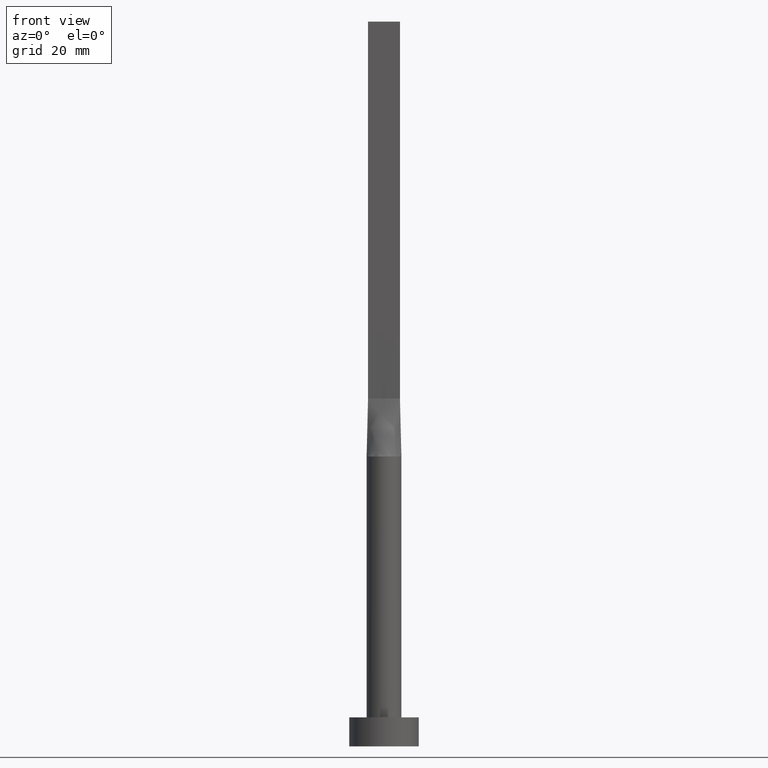
[diagram: clean part render]
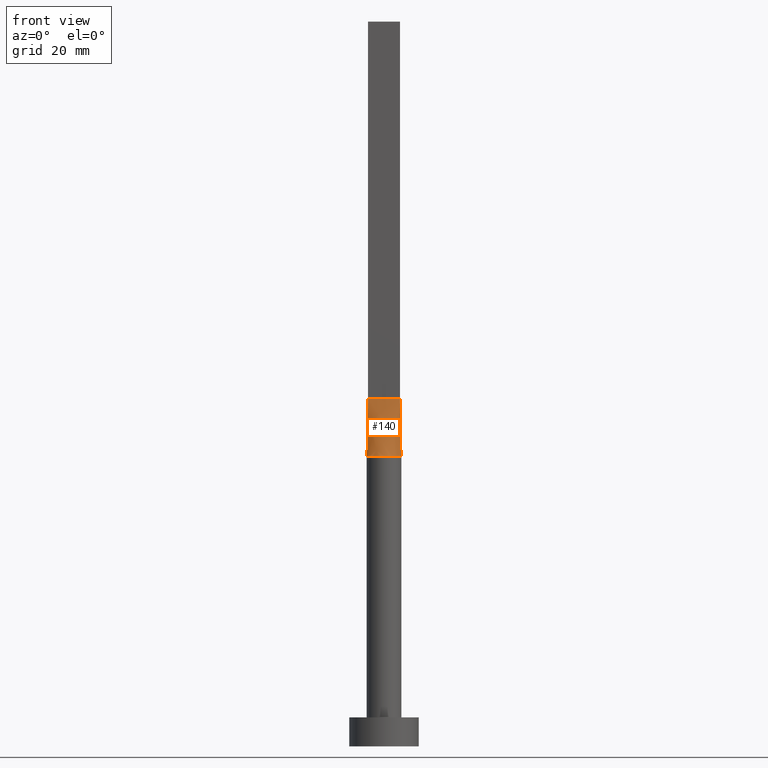
[diagram: same view with one face highlighted and labeled with its STEP entity id]
A machine part, front view. The second image highlights one B-rep face of the part: STEP entity #140.
In plain terms, the highlighted face is a freeform B-spline surface patch.
Its self-contained STEP definition (entity closure, byte-faithful):
#18 = VERTEX_POINT ( 'NONE', #77 ) ;
#29 = VECTOR ( 'NONE', #60, 1000.000000000000000 ) ;
#40 = CARTESIAN_POINT ( 'NONE',  ( -0.4583333333333366455, -0.5999999999999994227, 59.99999999999998579 ) ) ;
#42 = CARTESIAN_POINT ( 'NONE',  ( 1.517787371616671876, -2.616501225271829156, 50.00000000000002842 ) ) ;
#45 = CARTESIAN_POINT ( 'NONE',  ( -2.520833333333333037, -0.5999999999999994227, 59.99999999999999289 ) ) ;
#60 = DIRECTION ( 'NONE',  ( -0.01810162078030962129, -0.003949444533885649103, -0.9998283518749604415 ) ) ;
#64 = CARTESIAN_POINT ( 'NONE',  ( 2.518011668798964209, -1.657305971825550506, 49.99999999999998579 ) ) ;
#69 = CARTESIAN_POINT ( 'NONE',  ( 2.750000000000000000, -0.5999999999999997558, 60.00000000000000000 ) ) ;
#76 = CARTESIAN_POINT ( 'NONE',  ( -2.792624347712116428, -1.135030881087314647, 49.99999999999997868 ) ) ;
#77 = CARTESIAN_POINT ( 'NONE',  ( -2.750000000000000000, -0.5999999999999994227, 60.00000000000000000 ) ) ;
#113 = EDGE_CURVE ( 'NONE', #333, #520, #442, .T. ) ;
#116 = ORIENTED_EDGE ( 'NONE', *, *, #208, .T. ) ;
#130 = CARTESIAN_POINT ( 'NONE',  ( -1.829136458871248427, -2.402980488111649660, 49.99999999999997158 ) ) ;
#140 = ADVANCED_FACE ( 'NONE', ( #249 ), #419, .T. ) ;
#148 = ORIENTED_EDGE ( 'NONE', *, *, #226, .F. ) ;
#153 = CARTESIAN_POINT ( 'NONE',  ( 2.931047284229977734, -0.6395012256501753090, 49.99999999999999289 ) ) ;
#162 = CARTESIAN_POINT ( 'NONE',  ( -2.328745122427009928, -1.922758842442225058, 49.99999999999997868 ) ) ;
#163 = EDGE_CURVE ( 'NONE', #18, #494, #422, .T. ) ;
#166 = CARTESIAN_POINT ( 'NONE',  ( -1.145833333333335480, -0.5999999999999994227, 59.99999999999998579 ) ) ;
#170 = DIRECTION ( 'NONE',  ( 1.000000000000000000, -5.913830031739115543E-17, 0.000000000000000000 ) ) ;
#186 = CARTESIAN_POINT ( 'NONE',  ( 1.145833333333330373, -0.5999999999999996447, 60.00000000000000000 ) ) ;
#195 = CARTESIAN_POINT ( 'NONE',  ( 1.833333333333331261, -0.5999999999999996447, 60.00000000000000000 ) ) ;
#200 = CARTESIAN_POINT ( 'NONE',  ( -0.9166666666666691832, -0.5999999999999994227, 59.99999999999998579 ) ) ;
#204 = VECTOR ( 'NONE', #170, 1000.000000000000000 ) ;
#205 = CARTESIAN_POINT ( 'NONE',  ( -0.2291666666666703212, -0.5999999999999995337, 59.99999999999999289 ) ) ;
#208 = EDGE_CURVE ( 'NONE', #494, #333, #265, .T. ) ;
#210 = VECTOR ( 'NONE', #260, 1000.000000000000000 ) ;
#216 = CARTESIAN_POINT ( 'NONE',  ( -2.750000000000000000, -0.5999999999999994227, 60.00000000000000000 ) ) ;
#223 = DIRECTION ( 'NONE',  ( 1.000000000000000000, 0.000000000000000000, 0.000000000000000000 ) ) ;
#226 = EDGE_CURVE ( 'NONE', #18, #520, #374, .T. ) ;
#249 = FACE_OUTER_BOUND ( 'NONE', #278, .T. ) ;
#256 = CARTESIAN_POINT ( 'NONE',  ( -1.604166666666667851, -0.5999999999999994227, 59.99999999999998579 ) ) ;
#260 = DIRECTION ( 'NONE',  ( -0.01810162078030962129, 0.003949444533885595326, 0.9998283518749604415 ) ) ;
#265 = CIRCLE ( 'NONE', #322, 3.000000000000000444 ) ;
#278 = EDGE_LOOP ( 'NONE', ( #116, #353, #148, #416 ) ) ;
#282 = CARTESIAN_POINT ( 'NONE',  ( 2.750000000000000000, -0.5999999999999997558, 60.00000000000000000 ) ) ;
#305 = CARTESIAN_POINT ( 'NONE',  ( 1.604166666666664298, -0.5999999999999996447, 60.00000000000000000 ) ) ;
#322 = AXIS2_PLACEMENT_3D ( 'NONE', #335, #515, #223 ) ;
#327 = CARTESIAN_POINT ( 'NONE',  ( -2.931315536094174057, -0.6395601373676296220, 49.99999999999999289 ) ) ;
#333 = VERTEX_POINT ( 'NONE', #483 ) ;
#335 = CARTESIAN_POINT ( 'NONE',  ( 0.000000000000000000, 0.000000000000000000, 49.99999999999999289 ) ) ;
#347 = CARTESIAN_POINT ( 'NONE',  ( 2.792624347712116872, -1.135030881087315757, 49.99999999999999289 ) ) ;
#353 = ORIENTED_EDGE ( 'NONE', *, *, #113, .T. ) ;
#358 = CARTESIAN_POINT ( 'NONE',  ( -2.750000000000000000, -0.5999999999999994227, 60.00000000000000000 ) ) ;
#361 = CARTESIAN_POINT ( 'NONE',  ( 0.4583333333333299286, -0.5999999999999995337, 59.99999999999999289 ) ) ;
#364 = CARTESIAN_POINT ( 'NONE',  ( -2.931047284229977734, -0.6395012256501755310, 49.99999999999999289 ) ) ;
#374 = LINE ( 'NONE', #216, #204 ) ;
#385 = CARTESIAN_POINT ( 'NONE',  ( 2.291666666666665186, -0.5999999999999996447, 60.00000000000000000 ) ) ;
#392 = CARTESIAN_POINT ( 'NONE',  ( -0.4026715616377306572, -3.000000000000000000, 50.00000000000000000 ) ) ;
#399 = CARTESIAN_POINT ( 'NONE',  ( 0.4026715616377293805, -3.000000000000001332, 49.99999999999998579 ) ) ;
#402 = CARTESIAN_POINT ( 'NONE',  ( 0.9166666666666636321, -0.5999999999999996447, 59.99999999999999289 ) ) ;
#416 = ORIENTED_EDGE ( 'NONE', *, *, #163, .T. ) ;
#419 = B_SPLINE_SURFACE_WITH_KNOTS ( 'NONE', 3, 1, ( 
 ( #364, #358 ),
 ( #437, #45 ),
 ( #76, #531 ),
 ( #444, #580 ),
 ( #162, #256 ),
 ( #130, #166 ),
 ( #476, #200 ),
 ( #446, #40 ),
 ( #392, #205 ),
 ( #399, #572 ),
 ( #578, #361 ),
 ( #42, #402 ),
 ( #478, #186 ),
 ( #511, #305 ),
 ( #64, #195 ),
 ( #347, #385 ),
 ( #563, #566 ),
 ( #153, #69 ) ),
 .UNSPECIFIED., .F., .F., .F.,
 ( 4, 2, 2, 2, 2, 2, 2, 2, 4 ),
 ( 2, 2 ),
 ( 0.000000000000000000, 0.1250000000000000833, 0.2500000000000001665, 0.3750000000000001110, 0.5000000000000001110, 0.6250000000000001110, 0.7500000000000000000, 0.8750000000000000000, 1.000000000000000000 ),
 ( 0.000000000000000000, 1.000000000000000000 ),
 .UNSPECIFIED. ) ;
#422 = LINE ( 'NONE', #432, #29 ) ;
#432 = CARTESIAN_POINT ( 'NONE',  ( -2.840523642114988867, -0.6197506128250873658, 54.99999999999999289 ) ) ;
#437 = CARTESIAN_POINT ( 'NONE',  ( -2.878980386154874616, -0.8781411751610622707, 49.99999999999999289 ) ) ;
#442 = LINE ( 'NONE', #575, #210 ) ;
#444 = CARTESIAN_POINT ( 'NONE',  ( -2.518011668798964653, -1.657305971825550062, 49.99999999999997868 ) ) ;
#446 = CARTESIAN_POINT ( 'NONE',  ( -0.8041209001220698260, -2.916015559847872307, 50.00000000000001421 ) ) ;
#476 = CARTESIAN_POINT ( 'NONE',  ( -1.517787371616672321, -2.616501225271827380, 49.99999999999999289 ) ) ;
#478 = CARTESIAN_POINT ( 'NONE',  ( 1.829136458871248205, -2.402980488111650992, 49.99999999999999289 ) ) ;
#483 = CARTESIAN_POINT ( 'NONE',  ( 2.931332910560268790, -0.6395638358681943192, 49.99999999999999289 ) ) ;
#494 = VERTEX_POINT ( 'NONE', #327 ) ;
#511 = CARTESIAN_POINT ( 'NONE',  ( 2.328745122427008152, -1.922758842442226390, 49.99999999999998579 ) ) ;
#515 = DIRECTION ( 'NONE',  ( 0.000000000000000000, 0.000000000000000000, 1.000000000000000000 ) ) ;
#520 = VERTEX_POINT ( 'NONE', #282 ) ;
#531 = CARTESIAN_POINT ( 'NONE',  ( -2.291666666666666519, -0.5999999999999994227, 59.99999999999998579 ) ) ;
#563 = CARTESIAN_POINT ( 'NONE',  ( 2.878980386154875060, -0.8781411751610634919, 50.00000000000000000 ) ) ;
#566 = CARTESIAN_POINT ( 'NONE',  ( 2.520833333333332593, -0.5999999999999996447, 60.00000000000000000 ) ) ;
#572 = CARTESIAN_POINT ( 'NONE',  ( 0.2291666666666629937, -0.5999999999999995337, 59.99999999999998579 ) ) ;
#575 = CARTESIAN_POINT ( 'NONE',  ( 2.840523642114988867, -0.6197506128250874768, 54.99999999999999289 ) ) ;
#578 = CARTESIAN_POINT ( 'NONE',  ( 0.8041209001220684938, -2.916015559847872751, 50.00000000000000711 ) ) ;
#580 = CARTESIAN_POINT ( 'NONE',  ( -1.833333333333334147, -0.5999999999999994227, 59.99999999999998579 ) ) ;